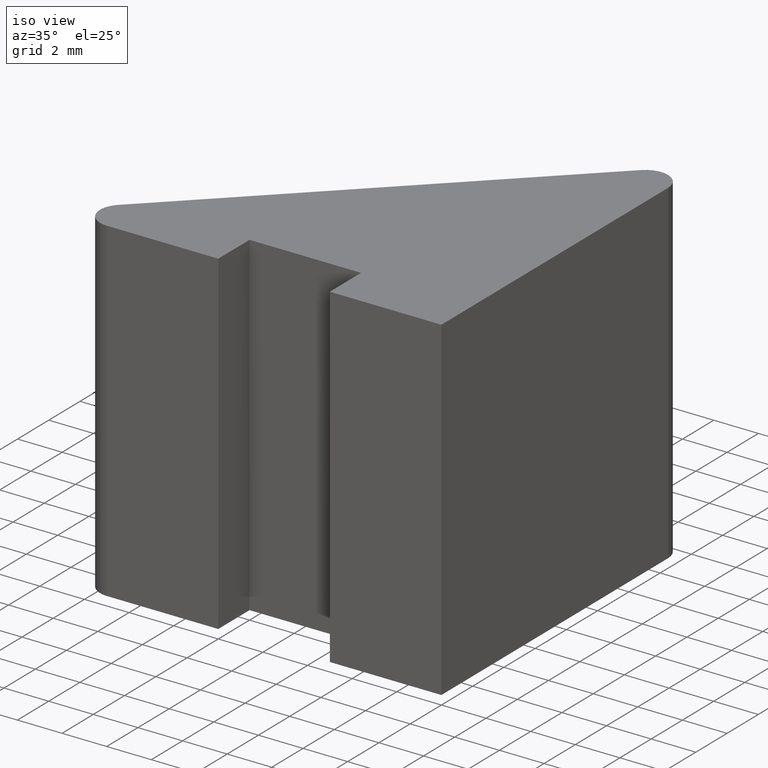
[diagram: clean part render]
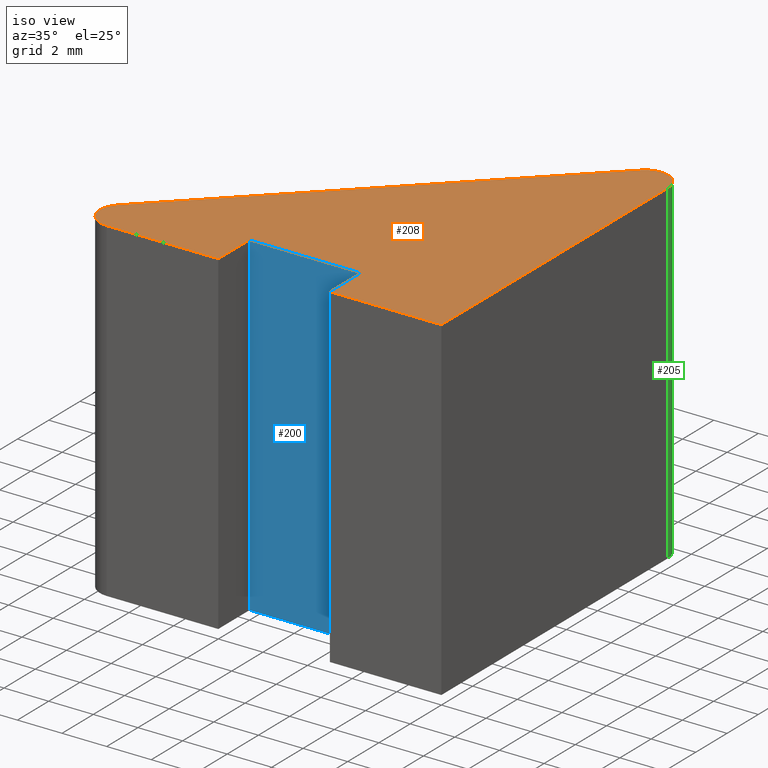
[diagram: same view with three faces highlighted in distinct colors, each labeled with its STEP entity id]
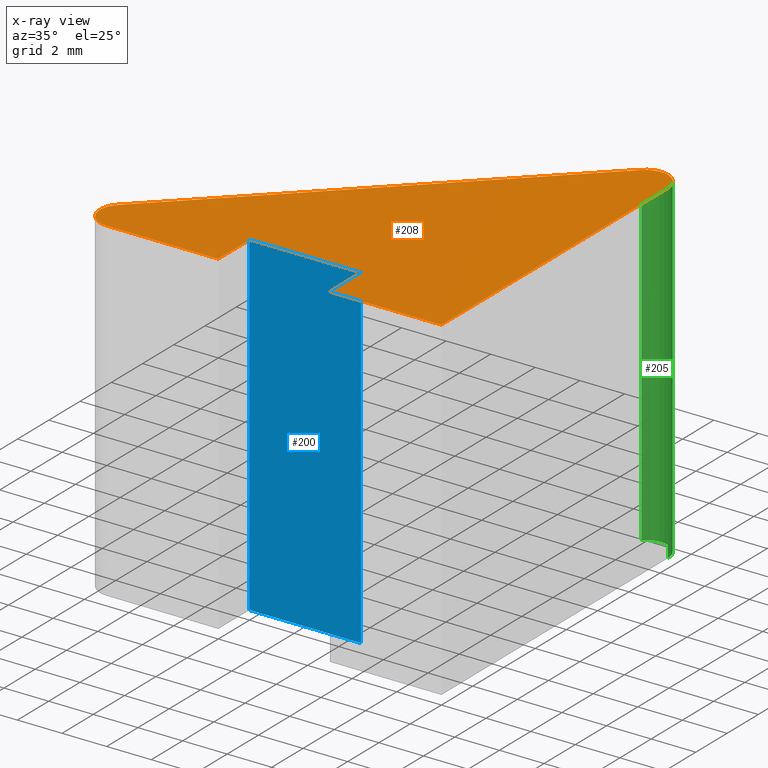
[diagram: x-ray of the same camera — body ghosted, the three highlighted faces saturated]
A machine part, iso view with three faces highlighted in distinct colors.
The next image is the same camera in x-ray (body ghosted, the three faces saturated) — at least one of them is partly hidden behind the body in this view.
Their STEP definitions:

[orange] entity #208 — the highlighted planar face has unit normal (0, 0, 1).
#28=FACE_OUTER_BOUND('',#39,.T.);
#39=EDGE_LOOP('',(#180,#181,#182,#183,#184,#185,#186,#187,#188));
#42=CIRCLE('',#240,1.);
#43=CIRCLE('',#243,1.);
#51=LINE('',#325,#74);
#54=LINE('',#330,#77);
#56=LINE('',#334,#79);
#58=LINE('',#338,#81);
#61=LINE('',#346,#84);
#64=LINE('',#354,#87);
#66=LINE('',#357,#89);
#74=VECTOR('',#264,10.);
#77=VECTOR('',#269,10.);
#79=VECTOR('',#273,10.);
#81=VECTOR('',#277,10.);
#84=VECTOR('',#286,10.);
#87=VECTOR('',#295,10.);
#89=VECTOR('',#299,10.);
#99=VERTEX_POINT('',#323);
#100=VERTEX_POINT('',#324);
#101=VERTEX_POINT('',#329);
#102=VERTEX_POINT('',#333);
#103=VERTEX_POINT('',#337);
#104=VERTEX_POINT('',#341);
#105=VERTEX_POINT('',#345);
#106=VERTEX_POINT('',#349);
#107=VERTEX_POINT('',#353);
#117=EDGE_CURVE('',#99,#100,#51,.T.);
#120=EDGE_CURVE('',#100,#101,#54,.T.);
#122=EDGE_CURVE('',#101,#102,#56,.T.);
#124=EDGE_CURVE('',#102,#103,#58,.T.);
#126=EDGE_CURVE('',#103,#104,#42,.T.);
#128=EDGE_CURVE('',#104,#105,#61,.T.);
#130=EDGE_CURVE('',#105,#106,#43,.T.);
#132=EDGE_CURVE('',#106,#107,#64,.T.);
#134=EDGE_CURVE('',#107,#99,#66,.T.);
#180=ORIENTED_EDGE('',*,*,#117,.F.);
#181=ORIENTED_EDGE('',*,*,#134,.F.);
#182=ORIENTED_EDGE('',*,*,#132,.F.);
#183=ORIENTED_EDGE('',*,*,#130,.F.);
#184=ORIENTED_EDGE('',*,*,#128,.F.);
#185=ORIENTED_EDGE('',*,*,#126,.F.);
#186=ORIENTED_EDGE('',*,*,#124,.F.);
#187=ORIENTED_EDGE('',*,*,#122,.F.);
#188=ORIENTED_EDGE('',*,*,#120,.F.);
#197=PLANE('',#246);
#208=ADVANCED_FACE('',(#28),#197,.T.);
#240=AXIS2_PLACEMENT_3D('',#342,#281,#282);
#243=AXIS2_PLACEMENT_3D('',#350,#290,#291);
#246=AXIS2_PLACEMENT_3D('',#358,#300,#301);
#264=DIRECTION('',(0.,1.,0.));
#269=DIRECTION('',(-1.,-1.11022302462516E-16,0.));
#273=DIRECTION('',(0.,-1.,0.));
#277=DIRECTION('',(-1.,-1.09999327305771E-16,0.));
#281=DIRECTION('center_axis',(0.,0.,-1.));
#282=DIRECTION('ref_axis',(0.694135570584232,-0.719844295420685,0.));
#286=DIRECTION('',(0.719844295420685,0.694135570584232,0.));
#290=DIRECTION('center_axis',(0.,0.,-1.));
#291=DIRECTION('ref_axis',(-1.,0.,0.));
#295=DIRECTION('',(3.04009397021587E-16,-1.,0.));
#299=DIRECTION('',(-1.,0.,0.));
#300=DIRECTION('center_axis',(0.,0.,1.));
#301=DIRECTION('ref_axis',(1.,0.,0.));
#323=CARTESIAN_POINT('',(-5.,0.,7.5));
#324=CARTESIAN_POINT('',(-5.,2.,7.5));
#325=CARTESIAN_POINT('',(-5.,0.,7.5));
#329=CARTESIAN_POINT('',(-10.,2.,7.5));
#330=CARTESIAN_POINT('',(-5.,2.,7.5));
#333=CARTESIAN_POINT('',(-10.,2.21533117346659E-15,7.5));
#334=CARTESIAN_POINT('',(-10.,2.,7.5));
#337=CARTESIAN_POINT('',(-15.,1.66533453693773E-15,7.5));
#338=CARTESIAN_POINT('',(-10.,2.21533117346659E-15,7.5));
#341=CARTESIAN_POINT('',(-15.6941355705842,1.71984429542069,7.5));
#342=CARTESIAN_POINT('Origin',(-15.,1.,7.5));
#345=CARTESIAN_POINT('',(-1.69413557058423,15.2198442954207,7.5));
#346=CARTESIAN_POINT('',(-15.6941355705842,1.71984429542069,7.5));
#349=CARTESIAN_POINT('',(1.2490009027033E-15,14.5,7.5));
#350=CARTESIAN_POINT('Origin',(-1.,14.5,7.5));
#353=CARTESIAN_POINT('',(5.65713715951632E-15,0.,7.5));
#354=CARTESIAN_POINT('',(1.2490009027033E-15,14.5,7.5));
#357=CARTESIAN_POINT('',(5.65713715951632E-15,0.,7.5));
#358=CARTESIAN_POINT('Origin',(-6.07845381438682,5.56838606184913,7.5));

[blue] entity #200 — the highlighted planar face has unit normal (0, -1, 0).
#20=FACE_OUTER_BOUND('',#31,.T.);
#31=EDGE_LOOP('',(#148,#149,#150,#151));
#47=LINE('',#312,#70);
#52=LINE('',#326,#75);
#54=LINE('',#330,#77);
#55=LINE('',#331,#78);
#70=VECTOR('',#254,10.);
#75=VECTOR('',#265,10.);
#77=VECTOR('',#269,10.);
#78=VECTOR('',#270,10.);
#93=VERTEX_POINT('',#309);
#94=VERTEX_POINT('',#311);
#100=VERTEX_POINT('',#324);
#101=VERTEX_POINT('',#329);
#111=EDGE_CURVE('',#94,#93,#47,.T.);
#118=EDGE_CURVE('',#100,#93,#52,.T.);
#120=EDGE_CURVE('',#100,#101,#54,.T.);
#121=EDGE_CURVE('',#101,#94,#55,.T.);
#148=ORIENTED_EDGE('',*,*,#120,.T.);
#149=ORIENTED_EDGE('',*,*,#121,.T.);
#150=ORIENTED_EDGE('',*,*,#111,.T.);
#151=ORIENTED_EDGE('',*,*,#118,.F.);
#191=PLANE('',#236);
#200=ADVANCED_FACE('',(#20),#191,.T.);
#236=AXIS2_PLACEMENT_3D('',#328,#267,#268);
#254=DIRECTION('',(1.,1.11022302462516E-16,0.));
#265=DIRECTION('',(0.,0.,-1.));
#267=DIRECTION('center_axis',(1.11022302462516E-16,-1.,0.));
#268=DIRECTION('ref_axis',(0.,0.,-1.));
#269=DIRECTION('',(-1.,-1.11022302462516E-16,0.));
#270=DIRECTION('',(0.,0.,-1.));
#309=CARTESIAN_POINT('',(-5.,2.,-7.5));
#311=CARTESIAN_POINT('',(-10.,2.,-7.5));
#312=CARTESIAN_POINT('',(-5.,2.,-7.5));
#324=CARTESIAN_POINT('',(-5.,2.,7.5));
#326=CARTESIAN_POINT('',(-5.,2.,0.));
#328=CARTESIAN_POINT('Origin',(-5.,2.,0.));
#329=CARTESIAN_POINT('',(-10.,2.,7.5));
#330=CARTESIAN_POINT('',(-5.,2.,7.5));
#331=CARTESIAN_POINT('',(-10.,2.,0.));

[green] entity #205 — the highlighted cylindrical surface (edge-blend (fillet) strip) has radius 1 mm, axis along (0, 0, 1).
#17=CYLINDRICAL_SURFACE('',#242,1.);
#25=FACE_OUTER_BOUND('',#36,.T.);
#36=EDGE_LOOP('',(#168,#169,#170,#171));
#41=CIRCLE('',#234,1.);
#43=CIRCLE('',#243,1.);
#62=LINE('',#347,#85);
#63=LINE('',#351,#86);
#85=VECTOR('',#287,10.);
#86=VECTOR('',#292,10.);
#91=VERTEX_POINT('',#305);
#98=VERTEX_POINT('',#319);
#105=VERTEX_POINT('',#345);
#106=VERTEX_POINT('',#349);
#116=EDGE_CURVE('',#91,#98,#41,.T.);
#129=EDGE_CURVE('',#105,#98,#62,.T.);
#130=EDGE_CURVE('',#105,#106,#43,.T.);
#131=EDGE_CURVE('',#106,#91,#63,.T.);
#168=ORIENTED_EDGE('',*,*,#130,.T.);
#169=ORIENTED_EDGE('',*,*,#131,.T.);
#170=ORIENTED_EDGE('',*,*,#116,.T.);
#171=ORIENTED_EDGE('',*,*,#129,.F.);
#205=ADVANCED_FACE('',(#25),#17,.T.);
#234=AXIS2_PLACEMENT_3D('',#321,#260,#261);
#242=AXIS2_PLACEMENT_3D('',#348,#288,#289);
#243=AXIS2_PLACEMENT_3D('',#350,#290,#291);
#260=DIRECTION('center_axis',(0.,0.,1.));
#261=DIRECTION('ref_axis',(-1.,0.,0.));
#287=DIRECTION('',(0.,0.,-1.));
#288=DIRECTION('center_axis',(0.,0.,1.));
#289=DIRECTION('ref_axis',(-1.,0.,0.));
#290=DIRECTION('center_axis',(0.,0.,-1.));
#291=DIRECTION('ref_axis',(-1.,0.,0.));
#292=DIRECTION('',(0.,0.,-1.));
#305=CARTESIAN_POINT('',(1.2490009027033E-15,14.5,-7.5));
#319=CARTESIAN_POINT('',(-1.69413557058423,15.2198442954207,-7.5));
#321=CARTESIAN_POINT('Origin',(-1.,14.5,-7.5));
#345=CARTESIAN_POINT('',(-1.69413557058423,15.2198442954207,7.5));
#347=CARTESIAN_POINT('',(-1.69413557058423,15.2198442954207,0.));
#348=CARTESIAN_POINT('Origin',(-1.,14.5,0.));
#349=CARTESIAN_POINT('',(1.2490009027033E-15,14.5,7.5));
#350=CARTESIAN_POINT('Origin',(-1.,14.5,7.5));
#351=CARTESIAN_POINT('',(1.2490009027033E-15,14.5,0.));